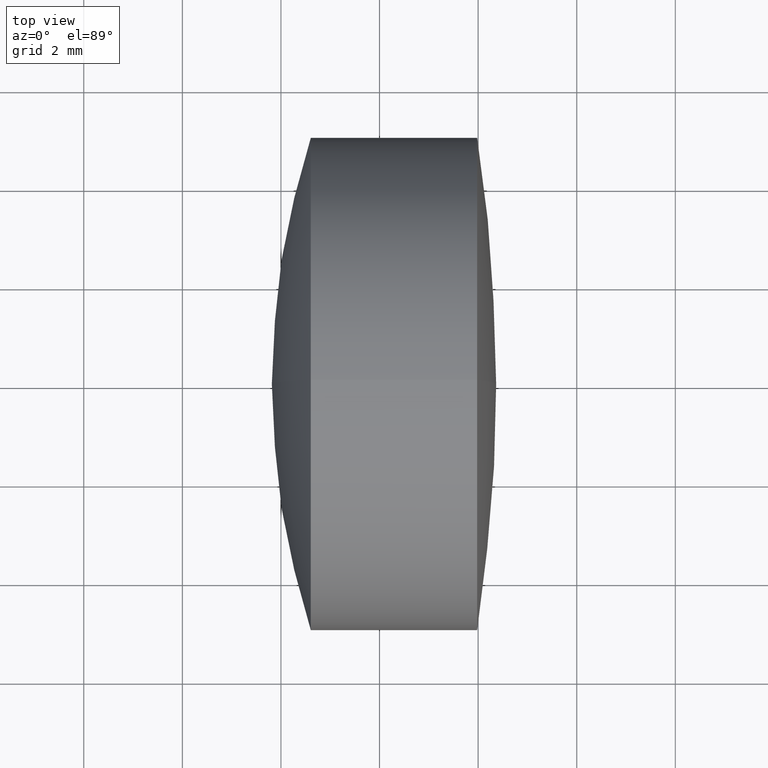
[diagram: clean part render]
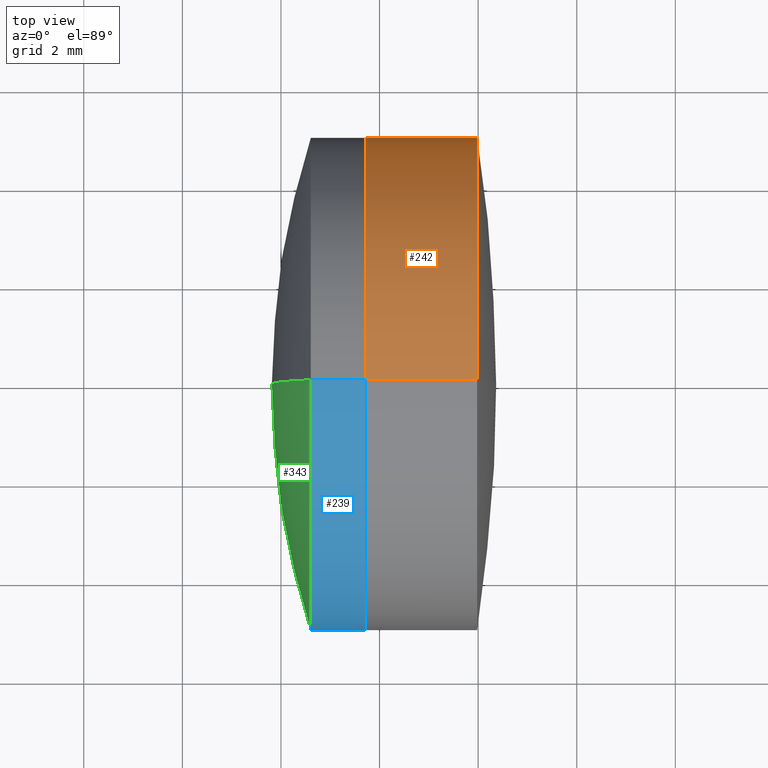
[diagram: same view with three faces highlighted in distinct colors, each labeled with its STEP entity id]
A machine part, top view with three faces highlighted in distinct colors.
Their STEP definitions:

[orange] entity #242 — the highlighted cylindrical surface (partial cylindrical patch) has radius 5 mm, axis along (-1, -0, -0).
#1 = CYLINDRICAL_SURFACE ( 'NONE', #227, 4.999999999999997300 ) ;
#8 = DIRECTION ( 'NONE',  ( -1.000000000000000000, -0.0000000000000000000, -0.0000000000000000000 ) ) ;
#9 = AXIS2_PLACEMENT_3D ( 'NONE', #255, #104, #235 ) ;
#19 = VERTEX_POINT ( 'NONE', #77 ) ;
#20 = VERTEX_POINT ( 'NONE', #62 ) ;
#29 = VERTEX_POINT ( 'NONE', #115 ) ;
#36 = ORIENTED_EDGE ( 'NONE', *, *, #161, .T. ) ;
#41 = DIRECTION ( 'NONE',  ( 0.0000000000000000000, 0.0000000000000000000, 1.000000000000000000 ) ) ;
#42 = EDGE_CURVE ( 'NONE', #20, #29, #309, .T. ) ;
#45 = ORIENTED_EDGE ( 'NONE', *, *, #42, .T. ) ;
#56 = VECTOR ( 'NONE', #60, 1000.000000000000000 ) ;
#60 = DIRECTION ( 'NONE',  ( -1.000000000000000000, -0.0000000000000000000, -0.0000000000000000000 ) ) ;
#62 = CARTESIAN_POINT ( 'NONE',  ( 5.980462902601981800, 6.123233995736762300E-016, -4.999999999999995600 ) ) ;
#77 = CARTESIAN_POINT ( 'NONE',  ( 5.980462902601981800, 0.0000000000000000000, 4.999999999999995600 ) ) ;
#81 = EDGE_CURVE ( 'NONE', #19, #347, #106, .T. ) ;
#104 = DIRECTION ( 'NONE',  ( -1.000000000000000000, -0.0000000000000000000, -0.0000000000000000000 ) ) ;
#106 = LINE ( 'NONE', #132, #158 ) ;
#115 = CARTESIAN_POINT ( 'NONE',  ( 3.722280238489434500, 6.123233995736763300E-016, -4.999999999999997300 ) ) ;
#132 = CARTESIAN_POINT ( 'NONE',  ( -0.5519199926577972300, 0.0000000000000000000, 4.999999999999997300 ) ) ;
#151 = DIRECTION ( 'NONE',  ( -1.000000000000000000, -0.0000000000000000000, -0.0000000000000000000 ) ) ;
#152 = AXIS2_PLACEMENT_3D ( 'NONE', #168, #8, #333 ) ;
#158 = VECTOR ( 'NONE', #151, 1000.000000000000000 ) ;
#161 = EDGE_CURVE ( 'NONE', #19, #20, #286, .T. ) ;
#165 = EDGE_LOOP ( 'NONE', ( #36, #45, #196, #174 ) ) ;
#168 = CARTESIAN_POINT ( 'NONE',  ( 3.722280238489433100, 0.0000000000000000000, 0.0000000000000000000 ) ) ;
#174 = ORIENTED_EDGE ( 'NONE', *, *, #81, .F. ) ;
#196 = ORIENTED_EDGE ( 'NONE', *, *, #214, .F. ) ;
#212 = FACE_OUTER_BOUND ( 'NONE', #165, .T. ) ;
#214 = EDGE_CURVE ( 'NONE', #347, #29, #232, .T. ) ;
#223 = CARTESIAN_POINT ( 'NONE',  ( 3.722280238489434500, 0.0000000000000000000, 4.999999999999997300 ) ) ;
#227 = AXIS2_PLACEMENT_3D ( 'NONE', #265, #241, #41 ) ;
#232 = CIRCLE ( 'NONE', #152, 4.999999999999999100 ) ;
#235 = DIRECTION ( 'NONE',  ( 0.0000000000000000000, 0.0000000000000000000, 1.000000000000000000 ) ) ;
#241 = DIRECTION ( 'NONE',  ( -1.000000000000000000, -0.0000000000000000000, -0.0000000000000000000 ) ) ;
#242 = ADVANCED_FACE ( 'NONE', ( #212 ), #1, .T. ) ;
#255 = CARTESIAN_POINT ( 'NONE',  ( 5.980462902601981800, 0.0000000000000000000, 0.0000000000000000000 ) ) ;
#265 = CARTESIAN_POINT ( 'NONE',  ( -0.5519199926577972300, 0.0000000000000000000, 0.0000000000000000000 ) ) ;
#286 = CIRCLE ( 'NONE', #9, 4.999999999999995600 ) ;
#309 = LINE ( 'NONE', #328, #56 ) ;
#328 = CARTESIAN_POINT ( 'NONE',  ( -0.5519199926577972300, 6.123233995736763300E-016, -4.999999999999997300 ) ) ;
#333 = DIRECTION ( 'NONE',  ( 0.0000000000000000000, 0.0000000000000000000, 1.000000000000000000 ) ) ;
#347 = VERTEX_POINT ( 'NONE', #223 ) ;

[blue] entity #239 — the highlighted cylindrical surface (partial cylindrical patch) has radius 5 mm, axis along (-1, -0, -0).
#3 = CARTESIAN_POINT ( 'NONE',  ( 2.605354894896700900, 0.0000000000000000000, 0.0000000000000000000 ) ) ;
#5 = CARTESIAN_POINT ( 'NONE',  ( 2.605354894896702700, 0.0000000000000000000, 5.000000000000002700 ) ) ;
#6 = DIRECTION ( 'NONE',  ( -1.000000000000000000, -0.0000000000000000000, -0.0000000000000000000 ) ) ;
#14 = VECTOR ( 'NONE', #209, 1000.000000000000000 ) ;
#57 = AXIS2_PLACEMENT_3D ( 'NONE', #210, #192, #303 ) ;
#59 = VERTEX_POINT ( 'NONE', #5 ) ;
#69 = AXIS2_PLACEMENT_3D ( 'NONE', #3, #6, #301 ) ;
#87 = ORIENTED_EDGE ( 'NONE', *, *, #141, .T. ) ;
#88 = CARTESIAN_POINT ( 'NONE',  ( -9.702612178336682500, 0.0000000000000000000, 5.000000000000000000 ) ) ;
#110 = ORIENTED_EDGE ( 'NONE', *, *, #116, .F. ) ;
#116 = EDGE_CURVE ( 'NONE', #318, #59, #127, .T. ) ;
#117 = DIRECTION ( 'NONE',  ( -1.000000000000000000, -0.0000000000000000000, -0.0000000000000000000 ) ) ;
#118 = ORIENTED_EDGE ( 'NONE', *, *, #213, .F. ) ;
#127 = CIRCLE ( 'NONE', #69, 5.000000000000000000 ) ;
#130 = CARTESIAN_POINT ( 'NONE',  ( -9.702612178336682500, 0.0000000000000000000, 0.0000000000000000000 ) ) ;
#141 = EDGE_CURVE ( 'NONE', #243, #305, #181, .T. ) ;
#148 = FACE_OUTER_BOUND ( 'NONE', #342, .T. ) ;
#154 = LINE ( 'NONE', #177, #275 ) ;
#159 = LINE ( 'NONE', #88, #14 ) ;
#177 = CARTESIAN_POINT ( 'NONE',  ( -9.702612178336682500, 6.123233995736766300E-016, -5.000000000000000000 ) ) ;
#181 = CIRCLE ( 'NONE', #57, 5.000000000000000000 ) ;
#182 = CARTESIAN_POINT ( 'NONE',  ( 2.605354894896702700, 6.123233995736769200E-016, -5.000000000000002700 ) ) ;
#192 = DIRECTION ( 'NONE',  ( -1.000000000000000000, -0.0000000000000000000, -0.0000000000000000000 ) ) ;
#195 = EDGE_CURVE ( 'NONE', #305, #59, #159, .T. ) ;
#209 = DIRECTION ( 'NONE',  ( -1.000000000000000000, -0.0000000000000000000, -0.0000000000000000000 ) ) ;
#210 = CARTESIAN_POINT ( 'NONE',  ( 3.722280238489432700, 0.0000000000000000000, 0.0000000000000000000 ) ) ;
#213 = EDGE_CURVE ( 'NONE', #243, #318, #154, .T. ) ;
#215 = DIRECTION ( 'NONE',  ( -1.000000000000000000, -0.0000000000000000000, -0.0000000000000000000 ) ) ;
#239 = ADVANCED_FACE ( 'NONE', ( #148 ), #281, .T. ) ;
#243 = VERTEX_POINT ( 'NONE', #330 ) ;
#271 = DIRECTION ( 'NONE',  ( 0.0000000000000000000, 0.0000000000000000000, 1.000000000000000000 ) ) ;
#275 = VECTOR ( 'NONE', #117, 1000.000000000000000 ) ;
#281 = CYLINDRICAL_SURFACE ( 'NONE', #299, 5.000000000000000000 ) ;
#297 = ORIENTED_EDGE ( 'NONE', *, *, #195, .T. ) ;
#299 = AXIS2_PLACEMENT_3D ( 'NONE', #130, #215, #271 ) ;
#301 = DIRECTION ( 'NONE',  ( 0.0000000000000000000, 0.0000000000000000000, 1.000000000000000000 ) ) ;
#303 = DIRECTION ( 'NONE',  ( 0.0000000000000000000, 0.0000000000000000000, 1.000000000000000000 ) ) ;
#305 = VERTEX_POINT ( 'NONE', #323 ) ;
#318 = VERTEX_POINT ( 'NONE', #182 ) ;
#323 = CARTESIAN_POINT ( 'NONE',  ( 3.722280238489432700, 0.0000000000000000000, 5.000000000000000000 ) ) ;
#330 = CARTESIAN_POINT ( 'NONE',  ( 3.722280238489432700, 6.123233995736766300E-016, -5.000000000000000000 ) ) ;
#342 = EDGE_LOOP ( 'NONE', ( #118, #87, #297, #110 ) ) ;

[green] entity #343 — the highlighted spherical surface has radius 16.222 mm.
#3 = CARTESIAN_POINT ( 'NONE',  ( 2.605354894896700900, 0.0000000000000000000, 0.0000000000000000000 ) ) ;
#5 = CARTESIAN_POINT ( 'NONE',  ( 2.605354894896702700, 0.0000000000000000000, 5.000000000000002700 ) ) ;
#6 = DIRECTION ( 'NONE',  ( -1.000000000000000000, -0.0000000000000000000, -0.0000000000000000000 ) ) ;
#13 = CIRCLE ( 'NONE', #267, 16.22200000000000100 ) ;
#22 = CIRCLE ( 'NONE', #72, 16.22200000000000100 ) ;
#24 = ORIENTED_EDGE ( 'NONE', *, *, #287, .T. ) ;
#25 = CARTESIAN_POINT ( 'NONE',  ( 1.815570678769085100, 0.0000000000000000000, 3.326856764881216400E-016 ) ) ;
#50 = DIRECTION ( 'NONE',  ( 0.0000000000000000000, -1.224646799147353200E-016, 1.000000000000000000 ) ) ;
#59 = VERTEX_POINT ( 'NONE', #5 ) ;
#69 = AXIS2_PLACEMENT_3D ( 'NONE', #3, #6, #301 ) ;
#72 = AXIS2_PLACEMENT_3D ( 'NONE', #76, #163, #290 ) ;
#76 = CARTESIAN_POINT ( 'NONE',  ( 18.03757067876908600, 0.0000000000000000000, -6.606253423002966100E-016 ) ) ;
#100 = DIRECTION ( 'NONE',  ( -0.0000000000000000000, 1.000000000000000000, 1.224646799147353200E-016 ) ) ;
#103 = SPHERICAL_SURFACE ( 'NONE', #336, 16.22200000000000100 ) ;
#116 = EDGE_CURVE ( 'NONE', #318, #59, #127, .T. ) ;
#127 = CIRCLE ( 'NONE', #69, 5.000000000000000000 ) ;
#134 = DIRECTION ( 'NONE',  ( 0.0000000000000000000, 1.000000000000000000, 0.0000000000000000000 ) ) ;
#142 = FACE_OUTER_BOUND ( 'NONE', #169, .T. ) ;
#156 = CARTESIAN_POINT ( 'NONE',  ( 18.03757067876908600, 0.0000000000000000000, -6.606253423002966100E-016 ) ) ;
#163 = DIRECTION ( 'NONE',  ( 0.0000000000000000000, -1.000000000000000000, 0.0000000000000000000 ) ) ;
#169 = EDGE_LOOP ( 'NONE', ( #338, #249, #24 ) ) ;
#173 = CARTESIAN_POINT ( 'NONE',  ( 18.03757067876908600, 0.0000000000000000000, -6.606253423002966100E-016 ) ) ;
#182 = CARTESIAN_POINT ( 'NONE',  ( 2.605354894896702700, 6.123233995736769200E-016, -5.000000000000002700 ) ) ;
#249 = ORIENTED_EDGE ( 'NONE', *, *, #116, .T. ) ;
#259 = VERTEX_POINT ( 'NONE', #25 ) ;
#267 = AXIS2_PLACEMENT_3D ( 'NONE', #156, #100, #50 ) ;
#287 = EDGE_CURVE ( 'NONE', #59, #259, #22, .T. ) ;
#290 = DIRECTION ( 'NONE',  ( 0.0000000000000000000, 0.0000000000000000000, -1.000000000000000000 ) ) ;
#291 = EDGE_CURVE ( 'NONE', #318, #259, #13, .T. ) ;
#301 = DIRECTION ( 'NONE',  ( 0.0000000000000000000, 0.0000000000000000000, 1.000000000000000000 ) ) ;
#318 = VERTEX_POINT ( 'NONE', #182 ) ;
#336 = AXIS2_PLACEMENT_3D ( 'NONE', #173, #134, #344 ) ;
#338 = ORIENTED_EDGE ( 'NONE', *, *, #291, .F. ) ;
#343 = ADVANCED_FACE ( 'NONE', ( #142 ), #103, .T. ) ;
#344 = DIRECTION ( 'NONE',  ( 0.0000000000000000000, 0.0000000000000000000, 1.000000000000000000 ) ) ;